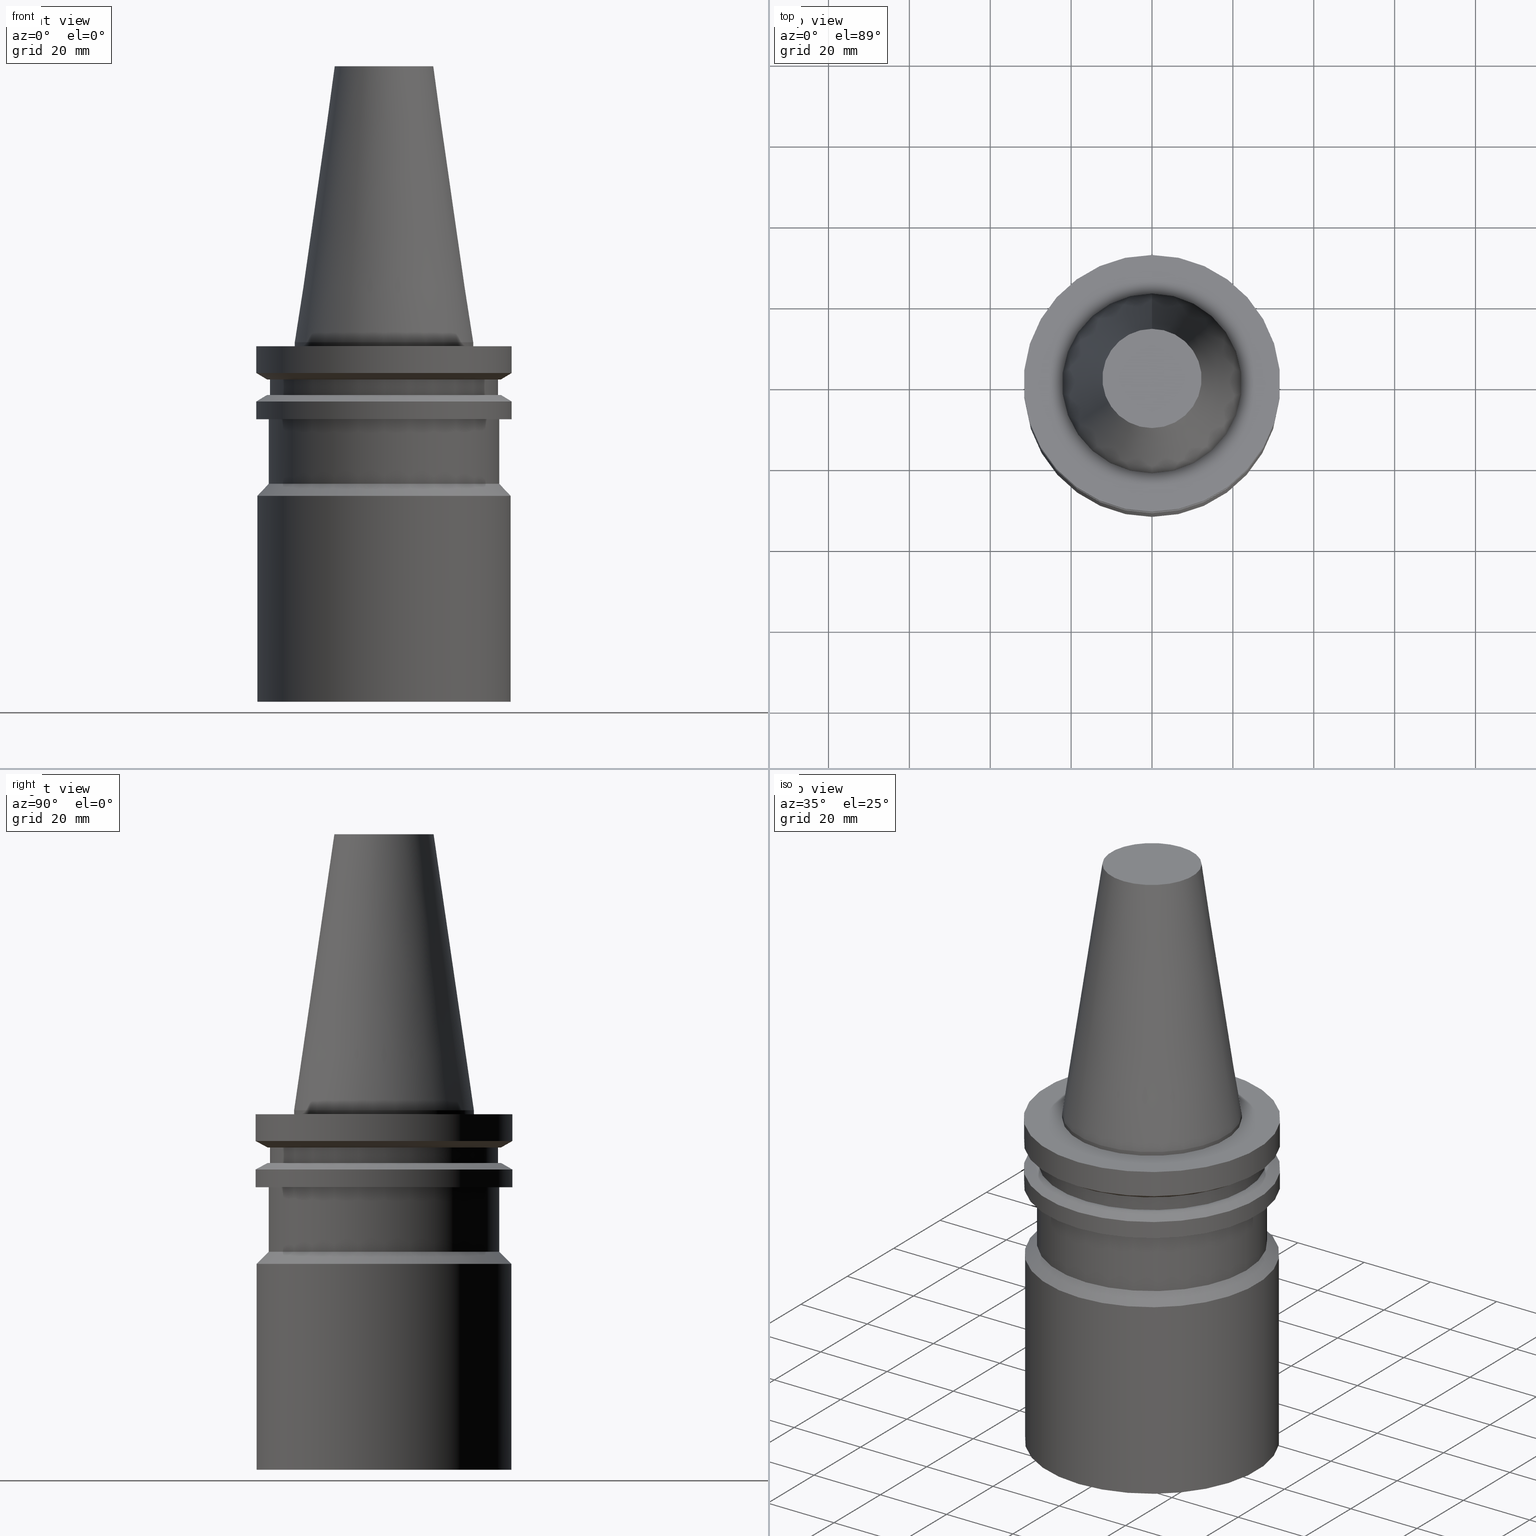
[diagram: canonical four-view strip — front | top / right | iso, engineering-drawing reading convention]
A machine part, canonical four-view strip (front | top / right | iso — engineering-drawing reading convention). The complete STEP part file that produces these views, byte-faithful:
ISO-10303-21;
HEADER;
FILE_DESCRIPTION((''),'1');
FILE_NAME('V:/90_\X2\53D65F9730C730FC30BF\X0\/00_\X2\6DE18DEF30C730FC30BF\X0\/ALL/BCV-BKUS\X2\FF76FF80FF9BFF78FF9E752852A05DE556F3\X0\201801/BCV40Y-CAPTO/BCV40Y-C6-3.5.stp','2018-02-01T01:51:46',(''),(''),'Spatial Interop R21 SP3','Kubotek KeyCreator 2011 V10.0.2 (22737)',' ');
FILE_SCHEMA(('automotive_design'));
ENDSEC;
DATA;
#1=MECHANICAL_DESIGN_GEOMETRIC_PRESENTATION_REPRESENTATION(' ',(#10,#11,#12,#13,#14,#15,#16,#17,#18,#19,#20,#21,#22,#23,#24,#25,#26,#27,#28,#29,#30,#31,#32,#33,#34,#35,#36,#37,#38,#39,#40,#41),#6);
#2=PRODUCT_DEFINITION_CONTEXT('',#42,'design');
#3=APPLICATION_PROTOCOL_DEFINITION('INTERNATIONAL STANDARD','automotive_design',1994,#42);
#4=PRODUCT_CATEGORY_RELATIONSHIP('NONE','NONE',#43,#44);
#5=SHAPE_DEFINITION_REPRESENTATION(#45,#46);
#6= (GEOMETRIC_REPRESENTATION_CONTEXT(3)GLOBAL_UNCERTAINTY_ASSIGNED_CONTEXT((#49))GLOBAL_UNIT_ASSIGNED_CONTEXT((#51,#52,#53))REPRESENTATION_CONTEXT('NONE','WORKSPACE'));
#10=STYLED_ITEM('',(#55),#56);
#11=STYLED_ITEM('',(#57),#58);
#12=STYLED_ITEM('',(#59,#60),#61);
#13=STYLED_ITEM('',(#62,#63),#64);
#14=STYLED_ITEM('',(#65),#66);
#15=STYLED_ITEM('',(#67),#68);
#16=STYLED_ITEM('',(#69),#70);
#17=STYLED_ITEM('',(#71,#72),#73);
#18=STYLED_ITEM('',(#74,#75),#76);
#19=STYLED_ITEM('',(#77),#78);
#20=STYLED_ITEM('',(#79,#80),#81);
#21=STYLED_ITEM('',(#82,#83),#84);
#22=STYLED_ITEM('',(#85),#86);
#23=STYLED_ITEM('',(#87,#88),#89);
#24=STYLED_ITEM('',(#90,#91),#92);
#25=STYLED_ITEM('',(#93,#94),#95);
#26=STYLED_ITEM('',(#96,#97),#98);
#27=STYLED_ITEM('',(#99,#100),#101);
#28=STYLED_ITEM('',(#102,#103),#104);
#29=STYLED_ITEM('',(#105,#106),#107);
#30=STYLED_ITEM('',(#108),#109);
#31=STYLED_ITEM('',(#110),#111);
#32=STYLED_ITEM('',(#112,#113),#114);
#33=STYLED_ITEM('',(#115),#116);
#34=STYLED_ITEM('',(#117),#118);
#35=STYLED_ITEM('',(#119),#120);
#36=STYLED_ITEM('',(#121),#122);
#37=STYLED_ITEM('',(#123,#124),#125);
#38=STYLED_ITEM('',(#126,#127),#128);
#39=STYLED_ITEM('',(#129,#130),#131);
#40=STYLED_ITEM('',(#132),#133);
#41=STYLED_ITEM('',(#134),#135);
#42=APPLICATION_CONTEXT(' ');
#43=PRODUCT_CATEGORY('part','NONE');
#44=PRODUCT_RELATED_PRODUCT_CATEGORY('detail',' ',(#136));
#45=PRODUCT_DEFINITION_SHAPE('NONE','NONE',#137);
#46=ADVANCED_BREP_SHAPE_REPRESENTATION('Unnamed[1]',(#92,#138),#6);
#49=UNCERTAINTY_MEASURE_WITH_UNIT(LENGTH_MEASURE(1.0E-006),#51,'','');
#51= (CONVERSION_BASED_UNIT('MILLIMETRE',#141)LENGTH_UNIT()NAMED_UNIT(#144));
#52= (NAMED_UNIT(#146)PLANE_ANGLE_UNIT()SI_UNIT($,.RADIAN.));
#53= (NAMED_UNIT(#146)SOLID_ANGLE_UNIT()SI_UNIT($,.STERADIAN.));
#55=PRESENTATION_STYLE_ASSIGNMENT((#152));
#56=EDGE_CURVE('Unnamed[1]',#153,#153,#154,.T.);
#57=PRESENTATION_STYLE_ASSIGNMENT((#155));
#58=EDGE_CURVE('Unnamed[1]',#156,#156,#157,.T.);
#59=PRESENTATION_STYLE_ASSIGNMENT((#158));
#60=PRESENTATION_STYLE_ASSIGNMENT((#159));
#61=ADVANCED_FACE('Unnamed[1]',(#160,#161),#162,.T.);
#62=PRESENTATION_STYLE_ASSIGNMENT((#163));
#63=PRESENTATION_STYLE_ASSIGNMENT((#164));
#64=ADVANCED_FACE('Unnamed[1]',(#165,#166),#167,.T.);
#65=PRESENTATION_STYLE_ASSIGNMENT((#168));
#66=EDGE_CURVE('Unnamed[1]',#169,#169,#170,.T.);
#67=PRESENTATION_STYLE_ASSIGNMENT((#171));
#68=EDGE_CURVE('Unnamed[1]',#172,#172,#173,.T.);
#69=PRESENTATION_STYLE_ASSIGNMENT((#174));
#70=EDGE_CURVE('Unnamed[1]',#175,#175,#176,.T.);
#71=PRESENTATION_STYLE_ASSIGNMENT((#177));
#72=PRESENTATION_STYLE_ASSIGNMENT((#178));
#73=ADVANCED_FACE('Unnamed[1]',(#179,#180),#181,.T.);
#74=PRESENTATION_STYLE_ASSIGNMENT((#182));
#75=PRESENTATION_STYLE_ASSIGNMENT((#183));
#76=ADVANCED_FACE('Unnamed[1]',(#184,#185),#186,.T.);
#77=PRESENTATION_STYLE_ASSIGNMENT((#187));
#78=EDGE_CURVE('Unnamed[1]',#188,#188,#189,.T.);
#79=PRESENTATION_STYLE_ASSIGNMENT((#190));
#80=PRESENTATION_STYLE_ASSIGNMENT((#191));
#81=ADVANCED_FACE('Unnamed[1]',(#192,#193),#194,.T.);
#82=PRESENTATION_STYLE_ASSIGNMENT((#195));
#83=PRESENTATION_STYLE_ASSIGNMENT((#196));
#84=ADVANCED_FACE('Unnamed[1]',(#197,#198),#199,.T.);
#85=PRESENTATION_STYLE_ASSIGNMENT((#200));
#86=EDGE_CURVE('Unnamed[1]',#201,#201,#202,.T.);
#87=PRESENTATION_STYLE_ASSIGNMENT((#203));
#88=PRESENTATION_STYLE_ASSIGNMENT((#204));
#89=ADVANCED_FACE('Unnamed[1]',(#205,#206),#207,.T.);
#90=PRESENTATION_STYLE_ASSIGNMENT((#208));
#91=PRESENTATION_STYLE_ASSIGNMENT((#209));
#92=MANIFOLD_SOLID_BREP('Unnamed[1]',#210);
#93=PRESENTATION_STYLE_ASSIGNMENT((#211));
#94=PRESENTATION_STYLE_ASSIGNMENT((#212));
#95=ADVANCED_FACE('Unnamed[1]',(#213),#214,.T.);
#96=PRESENTATION_STYLE_ASSIGNMENT((#215));
#97=PRESENTATION_STYLE_ASSIGNMENT((#216));
#98=ADVANCED_FACE('Unnamed[1]',(#217,#218),#219,.T.);
#99=PRESENTATION_STYLE_ASSIGNMENT((#220));
#100=PRESENTATION_STYLE_ASSIGNMENT((#221));
#101=ADVANCED_FACE('Unnamed[1]',(#222,#223),#224,.T.);
#102=PRESENTATION_STYLE_ASSIGNMENT((#225));
#103=PRESENTATION_STYLE_ASSIGNMENT((#226));
#104=ADVANCED_FACE('Unnamed[1]',(#227),#228,.T.);
#105=PRESENTATION_STYLE_ASSIGNMENT((#229));
#106=PRESENTATION_STYLE_ASSIGNMENT((#230));
#107=ADVANCED_FACE('Unnamed[1]',(#231,#232),#233,.T.);
#108=PRESENTATION_STYLE_ASSIGNMENT((#234));
#109=EDGE_CURVE('Unnamed[1]',#235,#235,#236,.T.);
#110=PRESENTATION_STYLE_ASSIGNMENT((#237));
#111=EDGE_CURVE('Unnamed[1]',#238,#238,#239,.T.);
#112=PRESENTATION_STYLE_ASSIGNMENT((#240));
#113=PRESENTATION_STYLE_ASSIGNMENT((#241));
#114=ADVANCED_FACE('Unnamed[1]',(#242,#243),#244,.T.);
#115=PRESENTATION_STYLE_ASSIGNMENT((#245));
#116=EDGE_CURVE('Unnamed[1]',#246,#246,#247,.T.);
#117=PRESENTATION_STYLE_ASSIGNMENT((#248));
#118=EDGE_CURVE('Unnamed[1]',#249,#249,#250,.T.);
#119=PRESENTATION_STYLE_ASSIGNMENT((#251));
#120=EDGE_CURVE('Unnamed[1]',#252,#252,#253,.T.);
#121=PRESENTATION_STYLE_ASSIGNMENT((#254));
#122=EDGE_CURVE('Unnamed[1]',#255,#255,#256,.T.);
#123=PRESENTATION_STYLE_ASSIGNMENT((#257));
#124=PRESENTATION_STYLE_ASSIGNMENT((#258));
#125=ADVANCED_FACE('Unnamed[1]',(#259,#260),#261,.T.);
#126=PRESENTATION_STYLE_ASSIGNMENT((#262));
#127=PRESENTATION_STYLE_ASSIGNMENT((#263));
#128=ADVANCED_FACE('Unnamed[1]',(#264,#265),#266,.T.);
#129=PRESENTATION_STYLE_ASSIGNMENT((#267));
#130=PRESENTATION_STYLE_ASSIGNMENT((#268));
#131=ADVANCED_FACE('Unnamed[1]',(#269,#270),#271,.T.);
#132=PRESENTATION_STYLE_ASSIGNMENT((#272));
#133=EDGE_CURVE('Unnamed[1]',#273,#273,#274,.T.);
#134=PRESENTATION_STYLE_ASSIGNMENT((#275));
#135=EDGE_CURVE('Unnamed[1]',#276,#276,#277,.T.);
#136=PRODUCT('Unnamed[1]','Unnamed[1]','PART-Unnamed[1]-DESC',(#278));
#137=PRODUCT_DEFINITION('NONE','NONE',#279,#2);
#138=AXIS2_PLACEMENT_3D('',#280,#281,#282);
#141=LENGTH_MEASURE_WITH_UNIT(LENGTH_MEASURE(1.0),#283);
#144=DIMENSIONAL_EXPONENTS(1.0,0.0,0.0,0.0,0.0,0.0,0.0);
#146=DIMENSIONAL_EXPONENTS(0.0,0.0,0.0,0.0,0.0,0.0,0.0);
#152=CURVE_STYLE('',#284,POSITIVE_LENGTH_MEASURE(1000.0),#285);
#153=VERTEX_POINT('',#286);
#154=CIRCLE('',#287,31.75);
#155=CURVE_STYLE('',#288,POSITIVE_LENGTH_MEASURE(1000.0),#289);
#156=VERTEX_POINT('',#290);
#157=CIRCLE('',#291,22.225);
#158=SURFACE_STYLE_USAGE(.BOTH.,#292);
#159=CURVE_STYLE('',#293,POSITIVE_LENGTH_MEASURE(1000.0),#294);
#160=FACE_BOUND('',#295,.T.);
#161=FACE_BOUND('',#296,.T.);
#162=CYLINDRICAL_SURFACE('',#297,28.5000000000001);
#163=SURFACE_STYLE_USAGE(.BOTH.,#298);
#164=CURVE_STYLE('',#299,POSITIVE_LENGTH_MEASURE(1000.0),#300);
#165=FACE_BOUND('',#301,.T.);
#166=FACE_BOUND('',#302,.T.);
#167=CYLINDRICAL_SURFACE('',#303,31.5);
#168=CURVE_STYLE('',#304,POSITIVE_LENGTH_MEASURE(1000.0),#305);
#169=VERTEX_POINT('',#306);
#170=CIRCLE('',#307,31.75);
#171=CURVE_STYLE('',#308,POSITIVE_LENGTH_MEASURE(1000.0),#309);
#172=VERTEX_POINT('',#310);
#173=CIRCLE('',#311,28.5000000000001);
#174=CURVE_STYLE('',#312,POSITIVE_LENGTH_MEASURE(1000.0),#313);
#175=VERTEX_POINT('',#314);
#176=CIRCLE('',#315,31.5);
#177=SURFACE_STYLE_USAGE(.BOTH.,#316);
#178=CURVE_STYLE('',#317,POSITIVE_LENGTH_MEASURE(1000.0),#318);
#179=FACE_BOUND('',#319,.T.);
#180=FACE_OUTER_BOUND('',#320,.T.);
#181=PLANE('',#321);
#182=SURFACE_STYLE_USAGE(.BOTH.,#322);
#183=CURVE_STYLE('',#323,POSITIVE_LENGTH_MEASURE(1000.0),#324);
#184=FACE_BOUND('',#325,.T.);
#185=FACE_BOUND('',#326,.T.);
#186=CYLINDRICAL_SURFACE('',#327,28.18);
#187=CURVE_STYLE('',#328,POSITIVE_LENGTH_MEASURE(1000.0),#329);
#188=VERTEX_POINT('',#330);
#189=CIRCLE('',#331,31.75);
#190=SURFACE_STYLE_USAGE(.BOTH.,#332);
#191=CURVE_STYLE('',#333,POSITIVE_LENGTH_MEASURE(1000.0),#334);
#192=FACE_BOUND('',#335,.T.);
#193=FACE_BOUND('',#336,.T.);
#194=CONICAL_SURFACE('',#337,30.358779226926,1.0471975511966);
#195=SURFACE_STYLE_USAGE(.BOTH.,#338);
#196=CURVE_STYLE('',#339,POSITIVE_LENGTH_MEASURE(1000.0),#340);
#197=FACE_BOUND('',#341,.T.);
#198=FACE_BOUND('',#342,.T.);
#199=CYLINDRICAL_SURFACE('',#343,31.75);
#200=CURVE_STYLE('',#344,POSITIVE_LENGTH_MEASURE(1000.0),#345);
#201=VERTEX_POINT('',#346);
#202=CIRCLE('',#347,31.5);
#203=SURFACE_STYLE_USAGE(.BOTH.,#348);
#204=CURVE_STYLE('',#349,POSITIVE_LENGTH_MEASURE(1000.0),#350);
#205=FACE_BOUND('',#351,.T.);
#206=FACE_BOUND('',#352,.T.);
#207=CYLINDRICAL_SURFACE('',#353,22.225);
#208=SURFACE_STYLE_USAGE(.BOTH.,#354);
#209=CURVE_STYLE('',#355,POSITIVE_LENGTH_MEASURE(1000.0),#356);
#210=CLOSED_SHELL('',(#104,#114,#89,#98,#125,#131,#101,#76,#107,#81,#84,#73,#61,#128,#64,#95));
#211=SURFACE_STYLE_USAGE(.BOTH.,#357);
#212=CURVE_STYLE('',#358,POSITIVE_LENGTH_MEASURE(1000.0),#359);
#213=FACE_OUTER_BOUND('',#360,.T.);
#214=PLANE('',#361);
#215=SURFACE_STYLE_USAGE(.BOTH.,#362);
#216=CURVE_STYLE('',#363,POSITIVE_LENGTH_MEASURE(1000.0),#364);
#217=FACE_OUTER_BOUND('',#365,.T.);
#218=FACE_BOUND('',#366,.T.);
#219=PLANE('',#367);
#220=SURFACE_STYLE_USAGE(.BOTH.,#368);
#221=CURVE_STYLE('',#369,POSITIVE_LENGTH_MEASURE(1000.0),#370);
#222=FACE_BOUND('',#371,.T.);
#223=FACE_OUTER_BOUND('',#372,.T.);
#224=PLANE('',#373);
#225=SURFACE_STYLE_USAGE(.BOTH.,#374);
#226=CURVE_STYLE('',#375,POSITIVE_LENGTH_MEASURE(1000.0),#376);
#227=FACE_OUTER_BOUND('',#377,.T.);
#228=PLANE('',#378);
#229=SURFACE_STYLE_USAGE(.BOTH.,#379);
#230=CURVE_STYLE('',#380,POSITIVE_LENGTH_MEASURE(1000.0),#381);
#231=FACE_OUTER_BOUND('',#382,.T.);
#232=FACE_BOUND('',#383,.T.);
#233=PLANE('',#384);
#234=CURVE_STYLE('',#385,POSITIVE_LENGTH_MEASURE(1000.0),#386);
#235=VERTEX_POINT('',#387);
#236=CIRCLE('',#388,12.271875);
#237=CURVE_STYLE('',#389,POSITIVE_LENGTH_MEASURE(1000.0),#390);
#238=VERTEX_POINT('',#391);
#239=CIRCLE('',#392,28.9675584538521);
#240=SURFACE_STYLE_USAGE(.BOTH.,#393);
#241=CURVE_STYLE('',#394,POSITIVE_LENGTH_MEASURE(1000.0),#395);
#242=FACE_BOUND('',#396,.T.);
#243=FACE_BOUND('',#397,.T.);
#244=CONICAL_SURFACE('',#398,17.2484375,0.144812498238939);
#245=CURVE_STYLE('',#399,POSITIVE_LENGTH_MEASURE(1000.0),#400);
#246=VERTEX_POINT('',#401);
#247=CIRCLE('',#402,28.18);
#248=CURVE_STYLE('',#403,POSITIVE_LENGTH_MEASURE(1000.0),#404);
#249=VERTEX_POINT('',#405);
#250=CIRCLE('',#406,22.225);
#251=CURVE_STYLE('',#407,POSITIVE_LENGTH_MEASURE(1000.0),#408);
#252=VERTEX_POINT('',#409);
#253=CIRCLE('',#410,28.5000000000001);
#254=CURVE_STYLE('',#411,POSITIVE_LENGTH_MEASURE(1000.0),#412);
#255=VERTEX_POINT('',#413);
#256=CIRCLE('',#414,28.967558453852);
#257=SURFACE_STYLE_USAGE(.BOTH.,#415);
#258=CURVE_STYLE('',#416,POSITIVE_LENGTH_MEASURE(1000.0),#417);
#259=FACE_BOUND('',#418,.T.);
#260=FACE_BOUND('',#419,.T.);
#261=CYLINDRICAL_SURFACE('',#420,31.75);
#262=SURFACE_STYLE_USAGE(.BOTH.,#421);
#263=CURVE_STYLE('',#422,POSITIVE_LENGTH_MEASURE(1000.0),#423);
#264=FACE_BOUND('',#424,.T.);
#265=FACE_BOUND('',#425,.T.);
#266=CONICAL_SURFACE('',#426,30.0000000000001,0.785398163397448);
#267=SURFACE_STYLE_USAGE(.BOTH.,#427);
#268=CURVE_STYLE('',#428,POSITIVE_LENGTH_MEASURE(1000.0),#429);
#269=FACE_BOUND('',#430,.T.);
#270=FACE_BOUND('',#431,.T.);
#271=CONICAL_SURFACE('',#432,30.358779226926,1.04719755119658);
#272=CURVE_STYLE('',#433,POSITIVE_LENGTH_MEASURE(1000.0),#434);
#273=VERTEX_POINT('',#435);
#274=CIRCLE('',#436,31.75);
#275=CURVE_STYLE('',#437,POSITIVE_LENGTH_MEASURE(1000.0),#438);
#276=VERTEX_POINT('',#439);
#277=CIRCLE('',#440,28.18);
#278=PRODUCT_CONTEXT('',#42,'mechanical');
#279=PRODUCT_DEFINITION_FORMATION_WITH_SPECIFIED_SOURCE(' ','NONE',#136,.NOT_KNOWN.);
#280=CARTESIAN_POINT('',(0.0,0.0,0.0));
#281=DIRECTION('',(0.0,0.0,1.0));
#282=DIRECTION('',(1.0,0.0,0.0));
#283= (NAMED_UNIT(#144)LENGTH_UNIT()SI_UNIT(.MILLI.,.METRE.));
#284=DRAUGHTING_PRE_DEFINED_CURVE_FONT('continuous');
#285=COLOUR_RGB('',0.0,1.0,0.0);
#286=CARTESIAN_POINT('',(6.12323399572837E-017,31.7499999999999,-0.999999999998632));
#287=AXIS2_PLACEMENT_3D('',#442,#443,#444);
#288=DRAUGHTING_PRE_DEFINED_CURVE_FONT('continuous');
#289=COLOUR_RGB('',0.0,1.0,0.0);
#290=CARTESIAN_POINT('',(-7.23525537133772E-030,22.225,1.16408615232721E-013));
#291=AXIS2_PLACEMENT_3D('',#445,#446,#447);
#292=SURFACE_SIDE_STYLE('',(#448));
#293=DRAUGHTING_PRE_DEFINED_CURVE_FONT('continuous');
#294=COLOUR_RGB('',0.0,1.0,0.0);
#295=EDGE_LOOP('',(#449));
#296=EDGE_LOOP('',(#450));
#297=AXIS2_PLACEMENT_3D('',#451,#452,#453);
#298=SURFACE_SIDE_STYLE('',(#454));
#299=DRAUGHTING_PRE_DEFINED_CURVE_FONT('continuous');
#300=COLOUR_RGB('',0.0,1.0,0.0);
#301=EDGE_LOOP('',(#455));
#302=EDGE_LOOP('',(#456));
#303=AXIS2_PLACEMENT_3D('',#457,#458,#459);
#304=DRAUGHTING_PRE_DEFINED_CURVE_FONT('continuous');
#305=COLOUR_RGB('',0.0,1.0,0.0);
#306=CARTESIAN_POINT('',(4.64971240706304E-016,31.7499999999999,-7.59355662432687));
#307=AXIS2_PLACEMENT_3D('',#460,#461,#462);
#308=DRAUGHTING_PRE_DEFINED_CURVE_FONT('continuous');
#309=COLOUR_RGB('',0.0,1.0,0.0);
#310=CARTESIAN_POINT('',(2.14313189850787E-015,28.5000000000001,-35.0000000000001));
#311=AXIS2_PLACEMENT_3D('',#463,#464,#465);
#312=DRAUGHTING_PRE_DEFINED_CURVE_FONT('continuous');
#313=COLOUR_RGB('',0.0,1.0,0.0);
#314=CARTESIAN_POINT('',(5.44355502220998E-015,31.5,-88.8999999999999));
#315=AXIS2_PLACEMENT_3D('',#466,#467,#468);
#316=SURFACE_SIDE_STYLE('',(#469));
#317=DRAUGHTING_PRE_DEFINED_CURVE_FONT('continuous');
#318=COLOUR_RGB('',0.0,1.0,0.0);
#319=EDGE_LOOP('',(#470));
#320=EDGE_LOOP('',(#471));
#321=AXIS2_PLACEMENT_3D('',#472,#473,#474);
#322=SURFACE_SIDE_STYLE('',(#475));
#323=DRAUGHTING_PRE_DEFINED_CURVE_FONT('continuous');
#324=COLOUR_RGB('',0.0,1.0,0.0);
#325=EDGE_LOOP('',(#476));
#326=EDGE_LOOP('',(#477));
#327=AXIS2_PLACEMENT_3D('',#478,#479,#480);
#328=DRAUGHTING_PRE_DEFINED_CURVE_FONT('continuous');
#329=COLOUR_RGB('',0.0,1.0,0.0);
#330=CARTESIAN_POINT('',(8.96835999945531E-016,31.7499999999999,-14.6464433756728));
#331=AXIS2_PLACEMENT_3D('',#481,#482,#483);
#332=SURFACE_SIDE_STYLE('',(#484));
#333=DRAUGHTING_PRE_DEFINED_CURVE_FONT('continuous');
#334=COLOUR_RGB('',0.0,1.0,0.0);
#335=EDGE_LOOP('',(#485));
#336=EDGE_LOOP('',(#486));
#337=AXIS2_PLACEMENT_3D('',#487,#488,#489);
#338=SURFACE_SIDE_STYLE('',(#490));
#339=DRAUGHTING_PRE_DEFINED_CURVE_FONT('continuous');
#340=COLOUR_RGB('',0.0,1.0,0.0);
#341=EDGE_LOOP('',(#491));
#342=EDGE_LOOP('',(#492));
#343=AXIS2_PLACEMENT_3D('',#493,#494,#495);
#344=DRAUGHTING_PRE_DEFINED_CURVE_FONT('continuous');
#345=COLOUR_RGB('',0.0,1.0,0.0);
#346=CARTESIAN_POINT('',(2.32682891837997E-015,31.5,-38.0));
#347=AXIS2_PLACEMENT_3D('',#496,#497,#498);
#348=SURFACE_SIDE_STYLE('',(#499));
#349=DRAUGHTING_PRE_DEFINED_CURVE_FONT('continuous');
#350=COLOUR_RGB('',0.0,1.0,0.0);
#351=EDGE_LOOP('',(#500));
#352=EDGE_LOOP('',(#501));
#353=AXIS2_PLACEMENT_3D('',#502,#503,#504);
#354=SURFACE_SIDE_STYLE('',(#505));
#355=DRAUGHTING_PRE_DEFINED_CURVE_FONT('continuous');
#356=COLOUR_RGB('',0.0,1.0,0.0);
#357=SURFACE_SIDE_STYLE('',(#506));
#358=DRAUGHTING_PRE_DEFINED_CURVE_FONT('continuous');
#359=COLOUR_RGB('',0.0,1.0,0.0);
#360=EDGE_LOOP('',(#507));
#361=AXIS2_PLACEMENT_3D('',#508,#509,#510);
#362=SURFACE_SIDE_STYLE('',(#511));
#363=DRAUGHTING_PRE_DEFINED_CURVE_FONT('continuous');
#364=COLOUR_RGB('',0.0,1.0,0.0);
#365=EDGE_LOOP('',(#512));
#366=EDGE_LOOP('',(#513));
#367=AXIS2_PLACEMENT_3D('',#514,#515,#516);
#368=SURFACE_SIDE_STYLE('',(#517));
#369=DRAUGHTING_PRE_DEFINED_CURVE_FONT('continuous');
#370=COLOUR_RGB('',0.0,1.0,0.0);
#371=EDGE_LOOP('',(#518));
#372=EDGE_LOOP('',(#519));
#373=AXIS2_PLACEMENT_3D('',#520,#521,#522);
#374=SURFACE_SIDE_STYLE('',(#523));
#375=DRAUGHTING_PRE_DEFINED_CURVE_FONT('continuous');
#376=COLOUR_RGB('',0.0,1.0,0.0);
#377=EDGE_LOOP('',(#524));
#378=AXIS2_PLACEMENT_3D('',#525,#526,#527);
#379=SURFACE_SIDE_STYLE('',(#528));
#380=DRAUGHTING_PRE_DEFINED_CURVE_FONT('continuous');
#381=COLOUR_RGB('',0.0,1.0,0.0);
#382=EDGE_LOOP('',(#529));
#383=EDGE_LOOP('',(#530));
#384=AXIS2_PLACEMENT_3D('',#531,#532,#533);
#385=DRAUGHTING_PRE_DEFINED_CURVE_FONT('continuous');
#386=COLOUR_RGB('',0.0,1.0,0.0);
#387=CARTESIAN_POINT('',(-4.17910720209035E-015,12.271875,68.2500000000002));
#388=AXIS2_PLACEMENT_3D('',#534,#535,#536);
#389=DRAUGHTING_PRE_DEFINED_CURVE_FONT('continuous');
#390=COLOUR_RGB('',0.0,1.0,0.0);
#391=CARTESIAN_POINT('',(5.63337527607771E-016,28.9675584538521,-9.19999999999981));
#392=AXIS2_PLACEMENT_3D('',#537,#538,#539);
#393=SURFACE_SIDE_STYLE('',(#540));
#394=DRAUGHTING_PRE_DEFINED_CURVE_FONT('continuous');
#395=COLOUR_RGB('',0.0,1.0,0.0);
#396=EDGE_LOOP('',(#541));
#397=EDGE_LOOP('',(#542));
#398=AXIS2_PLACEMENT_3D('',#543,#544,#545);
#399=DRAUGHTING_PRE_DEFINED_CURVE_FONT('continuous');
#400=COLOUR_RGB('',0.0,1.0,0.0);
#401=CARTESIAN_POINT('',(5.63337527607771E-016,28.18,-9.19999999999981));
#402=AXIS2_PLACEMENT_3D('',#546,#547,#548);
#403=DRAUGHTING_PRE_DEFINED_CURVE_FONT('continuous');
#404=COLOUR_RGB('',0.0,1.0,0.0);
#405=CARTESIAN_POINT('',(6.12323399572838E-017,22.225,-0.999999999998633));
#406=AXIS2_PLACEMENT_3D('',#549,#550,#551);
#407=DRAUGHTING_PRE_DEFINED_CURVE_FONT('continuous');
#408=COLOUR_RGB('',0.0,1.0,0.0);
#409=CARTESIAN_POINT('',(1.16647607618784E-015,28.5000000000001,-19.0499999999998));
#410=AXIS2_PLACEMENT_3D('',#552,#553,#554);
#411=DRAUGHTING_PRE_DEFINED_CURVE_FONT('continuous');
#412=COLOUR_RGB('',0.0,1.0,0.0);
#413=CARTESIAN_POINT('',(7.98469713044065E-016,28.967558453852,-13.0399999999998));
#414=AXIS2_PLACEMENT_3D('',#555,#556,#557);
#415=SURFACE_SIDE_STYLE('',(#558));
#416=DRAUGHTING_PRE_DEFINED_CURVE_FONT('continuous');
#417=COLOUR_RGB('',0.0,1.0,0.0);
#418=EDGE_LOOP('',(#559));
#419=EDGE_LOOP('',(#560));
#420=AXIS2_PLACEMENT_3D('',#561,#562,#563);
#421=SURFACE_SIDE_STYLE('',(#564));
#422=DRAUGHTING_PRE_DEFINED_CURVE_FONT('continuous');
#423=COLOUR_RGB('',0.0,1.0,0.0);
#424=EDGE_LOOP('',(#565));
#425=EDGE_LOOP('',(#566));
#426=AXIS2_PLACEMENT_3D('',#567,#568,#569);
#427=SURFACE_SIDE_STYLE('',(#570));
#428=DRAUGHTING_PRE_DEFINED_CURVE_FONT('continuous');
#429=COLOUR_RGB('',0.0,1.0,0.0);
#430=EDGE_LOOP('',(#571));
#431=EDGE_LOOP('',(#572));
#432=AXIS2_PLACEMENT_3D('',#573,#574,#575);
#433=DRAUGHTING_PRE_DEFINED_CURVE_FONT('continuous');
#434=COLOUR_RGB('',0.0,1.0,0.0);
#435=CARTESIAN_POINT('',(1.16647607618784E-015,31.7499999999999,-19.0499999999998));
#436=AXIS2_PLACEMENT_3D('',#576,#577,#578);
#437=DRAUGHTING_PRE_DEFINED_CURVE_FONT('continuous');
#438=COLOUR_RGB('',0.0,1.0,0.0);
#439=CARTESIAN_POINT('',(7.98469713044065E-016,28.18,-13.0399999999998));
#440=AXIS2_PLACEMENT_3D('',#579,#580,#581);
#442=CARTESIAN_POINT('',(6.1232339957285E-017,-3.2335566977408E-014,-0.99999999999865));
#443=DIRECTION('',(6.12323399573677E-017,4.5708356297992E-016,-1.0));
#444=DIRECTION('',(-3.28154488480826E-032,1.0,4.5708356297992E-016));
#445=CARTESIAN_POINT('',(-6.09114720904207E-030,-3.27926505403873E-014,9.9475983006414E-014));
#446=DIRECTION('',(6.12323399573677E-017,4.57083562979934E-016,-1.0));
#447=DIRECTION('',(-3.28154488480789E-032,1.0,4.57083562979934E-016));
#448=SURFACE_STYLE_FILL_AREA(#582);
#449=ORIENTED_EDGE('',*,*,#68,.F.);
#450=ORIENTED_EDGE('',*,*,#120,.T.);
#451=CARTESIAN_POINT('',(1.65480398734786E-015,-2.04399672508552E-014,-27.025));
#452=DIRECTION('',(6.12323399573677E-017,4.57083562979924E-016,-1.0));
#453=DIRECTION('',(-3.28154488480819E-032,1.0,4.57083562979924E-016));
#454=SURFACE_STYLE_FILL_AREA(#583);
#455=ORIENTED_EDGE('',*,*,#70,.F.);
#456=ORIENTED_EDGE('',*,*,#86,.T.);
#457=CARTESIAN_POINT('',(3.88519197029498E-015,-3.7906984693119E-015,-63.45));
#458=DIRECTION('',(6.12323399573677E-017,4.57083562979919E-016,-1.0));
#459=DIRECTION('',(-3.28154488480798E-032,1.0,4.57083562979919E-016));
#460=CARTESIAN_POINT('',(4.64971240706306E-016,-2.93217606228502E-014,-7.59355662432689));
#461=DIRECTION('',(6.12323399573677E-017,4.5708356297992E-016,-1.0));
#462=DIRECTION('',(-3.28154488480826E-032,1.0,4.5708356297992E-016));
#463=CARTESIAN_POINT('',(2.14313189850787E-015,-1.67947258360904E-014,-35.0000000000001));
#464=DIRECTION('',(6.12323399573677E-017,4.57083562979924E-016,-1.0));
#465=DIRECTION('',(-3.28154488480819E-032,1.0,4.57083562979924E-016));
#466=CARTESIAN_POINT('',(5.44355502220998E-015,7.84207820852682E-015,-88.8999999999999));
#467=DIRECTION('',(6.12323399573677E-017,4.57083562979919E-016,-1.0));
#468=DIRECTION('',(-3.28154488480798E-032,1.0,4.57083562979919E-016));
#469=SURFACE_STYLE_FILL_AREA(#584);
#470=ORIENTED_EDGE('',*,*,#120,.F.);
#471=ORIENTED_EDGE('',*,*,#133,.T.);
#472=CARTESIAN_POINT('',(1.16647607618784E-015,30.125,-19.0499999999998));
#473=DIRECTION('',(6.12323399573677E-017,1.22464679914735E-016,-1.0));
#474=DIRECTION('',(-1.23259516440783E-032,1.0,1.22464679914735E-016));
#475=SURFACE_STYLE_FILL_AREA(#585);
#476=ORIENTED_EDGE('',*,*,#135,.F.);
#477=ORIENTED_EDGE('',*,*,#116,.T.);
#478=CARTESIAN_POINT('',(6.80903620325919E-016,-2.77098813200507E-014,-11.1199999999998));
#479=DIRECTION('',(6.12323399573677E-017,4.57083562979922E-016,-1.0));
#480=DIRECTION('',(-3.28154488480815E-032,1.0,4.57083562979922E-016));
#481=CARTESIAN_POINT('',(8.96835999945533E-016,-2.60980020172512E-014,-14.6464433756728));
#482=DIRECTION('',(6.12323399573677E-017,4.5708356297992E-016,-1.0));
#483=DIRECTION('',(-3.28154488480826E-032,1.0,4.5708356297992E-016));
#484=SURFACE_STYLE_FILL_AREA(#586);
#485=ORIENTED_EDGE('',*,*,#78,.F.);
#486=ORIENTED_EDGE('',*,*,#122,.T.);
#487=CARTESIAN_POINT('',(8.47652856494799E-016,-2.64651414481903E-014,-13.8432216878363));
#488=DIRECTION('',(6.12323399573677E-017,4.57083562979896E-016,-1.0));
#489=DIRECTION('',(-3.28154488480789E-032,1.0,4.57083562979896E-016));
#490=SURFACE_STYLE_FILL_AREA(#587);
#491=ORIENTED_EDGE('',*,*,#133,.F.);
#492=ORIENTED_EDGE('',*,*,#78,.T.);
#493=CARTESIAN_POINT('',(1.03165603806669E-015,-2.50916053414356E-014,-16.8482216878363));
#494=DIRECTION('',(6.12323399573677E-017,4.5708356297992E-016,-1.0));
#495=DIRECTION('',(-3.28154488480826E-032,1.0,4.5708356297992E-016));
#496=CARTESIAN_POINT('',(2.32682891837997E-015,-1.54234751471506E-014,-38.0));
#497=DIRECTION('',(6.12323399573677E-017,4.57083562979919E-016,-1.0));
#498=DIRECTION('',(-3.28154488480827E-032,1.0,4.57083562979919E-016));
#499=SURFACE_STYLE_FILL_AREA(#588);
#500=ORIENTED_EDGE('',*,*,#118,.F.);
#501=ORIENTED_EDGE('',*,*,#58,.T.);
#502=CARTESIAN_POINT('',(3.06161699786395E-017,-3.25641087588977E-014,-0.499999999999275));
#503=DIRECTION('',(6.12323399573677E-017,4.57083562979934E-016,-1.0));
#504=DIRECTION('',(-3.28154488480789E-032,1.0,4.57083562979934E-016));
#505=SURFACE_STYLE_FILL_AREA(#589);
#506=SURFACE_STYLE_FILL_AREA(#590);
#507=ORIENTED_EDGE('',*,*,#70,.T.);
#508=CARTESIAN_POINT('',(5.44355502220998E-015,15.75,-88.8999999999999));
#509=DIRECTION('',(6.12323399573677E-017,2.82929414947702E-015,-1.0));
#510=DIRECTION('',(-1.78071453930937E-031,1.0,2.82929414947702E-015));
#511=SURFACE_STYLE_FILL_AREA(#591);
#512=ORIENTED_EDGE('',*,*,#56,.F.);
#513=ORIENTED_EDGE('',*,*,#118,.T.);
#514=CARTESIAN_POINT('',(6.12323399572838E-017,26.9875,-0.999999999998632));
#515=DIRECTION('',(-6.12323399573677E-017,-1.22464679914735E-016,1.0));
#516=DIRECTION('',(1.23259516440783E-032,-1.0,-1.22464679914735E-016));
#517=SURFACE_STYLE_FILL_AREA(#592);
#518=ORIENTED_EDGE('',*,*,#116,.F.);
#519=ORIENTED_EDGE('',*,*,#111,.T.);
#520=CARTESIAN_POINT('',(5.63337527607771E-016,28.573779226926,-9.19999999999981));
#521=DIRECTION('',(6.12323399573677E-017,1.22464679914735E-016,-1.0));
#522=DIRECTION('',(-1.23259516440783E-032,1.0,1.22464679914735E-016));
#523=SURFACE_STYLE_FILL_AREA(#593);
#524=ORIENTED_EDGE('',*,*,#109,.F.);
#525=CARTESIAN_POINT('',(-4.17910720209035E-015,6.13593749999994,68.2500000000002));
#526=DIRECTION('',(-6.12323399573677E-017,-1.22464679914735E-016,1.0));
#527=DIRECTION('',(1.23259516440783E-032,-1.0,-1.22464679914735E-016));
#528=SURFACE_STYLE_FILL_AREA(#594);
#529=ORIENTED_EDGE('',*,*,#122,.F.);
#530=ORIENTED_EDGE('',*,*,#135,.T.);
#531=CARTESIAN_POINT('',(7.98469713044065E-016,28.573779226926,-13.0399999999998));
#532=DIRECTION('',(-6.12323399573677E-017,-1.22464679914735E-016,1.0));
#533=DIRECTION('',(1.23259516440783E-032,-1.0,-1.22464679914735E-016));
#534=CARTESIAN_POINT('',(-4.17910720209035E-015,-6.39886037137663E-014,68.2500000000002));
#535=DIRECTION('',(6.12323399573677E-017,4.57083562979896E-016,-1.0));
#536=DIRECTION('',(-3.28154488480783E-032,1.0,4.57083562979896E-016));
#537=CARTESIAN_POINT('',(5.63337527607772E-016,-2.85874817609722E-014,-9.19999999999983));
#538=DIRECTION('',(6.12323399573677E-017,4.57083562979924E-016,-1.0));
#539=DIRECTION('',(-3.28154488480778E-032,1.0,4.57083562979924E-016));
#540=SURFACE_STYLE_FILL_AREA(#595);
#541=ORIENTED_EDGE('',*,*,#58,.F.);
#542=ORIENTED_EDGE('',*,*,#109,.T.);
#543=CARTESIAN_POINT('',(-2.08955360104518E-015,-4.83906271270768E-014,34.1250000000001));
#544=DIRECTION('',(6.12323399573677E-017,4.57083562979897E-016,-1.0));
#545=DIRECTION('',(-3.28154488480761E-032,1.0,4.57083562979897E-016));
#546=CARTESIAN_POINT('',(5.63337527607772E-016,-2.85874817609722E-014,-9.19999999999983));
#547=DIRECTION('',(6.12323399573677E-017,4.57083562979922E-016,-1.0));
#548=DIRECTION('',(-3.28154488480815E-032,1.0,4.57083562979922E-016));
#549=CARTESIAN_POINT('',(6.1232339957285E-017,-3.2335566977408E-014,-0.99999999999865));
#550=DIRECTION('',(6.12323399573677E-017,4.57083562979934E-016,-1.0));
#551=DIRECTION('',(-3.28154488480789E-032,1.0,4.57083562979934E-016));
#552=CARTESIAN_POINT('',(1.16647607618785E-015,-2.408520866562E-014,-19.0499999999999));
#553=DIRECTION('',(6.12323399573677E-017,4.57083562979924E-016,-1.0));
#554=DIRECTION('',(-3.28154488480819E-032,1.0,4.57083562979924E-016));
#555=CARTESIAN_POINT('',(7.98469713044066E-016,-2.68322808791293E-014,-13.0399999999999));
#556=DIRECTION('',(6.12323399573677E-017,4.57083562979926E-016,-1.0));
#557=DIRECTION('',(-3.2815448848081E-032,1.0,4.57083562979926E-016));
#558=SURFACE_STYLE_FILL_AREA(#596);
#559=ORIENTED_EDGE('',*,*,#66,.F.);
#560=ORIENTED_EDGE('',*,*,#56,.T.);
#561=CARTESIAN_POINT('',(2.63101790331795E-016,-3.08286638001291E-014,-4.29677831216277));
#562=DIRECTION('',(6.12323399573677E-017,4.5708356297992E-016,-1.0));
#563=DIRECTION('',(-3.28154488480826E-032,1.0,4.5708356297992E-016));
#564=SURFACE_STYLE_FILL_AREA(#597);
#565=ORIENTED_EDGE('',*,*,#86,.F.);
#566=ORIENTED_EDGE('',*,*,#68,.T.);
#567=CARTESIAN_POINT('',(2.23498040844392E-015,-1.61091004916205E-014,-36.5));
#568=DIRECTION('',(6.12323399573677E-017,4.57083562979921E-016,-1.0));
#569=DIRECTION('',(-3.28154488480808E-032,1.0,4.57083562979921E-016));
#570=SURFACE_STYLE_FILL_AREA(#598);
#571=ORIENTED_EDGE('',*,*,#111,.F.);
#572=ORIENTED_EDGE('',*,*,#66,.T.);
#573=CARTESIAN_POINT('',(5.14154384157039E-016,-2.89546211919112E-014,-8.39677831216336));
#574=DIRECTION('',(-6.12323399573677E-017,-4.57083562979895E-016,1.0));
#575=DIRECTION('',(-3.28154488480788E-032,1.0,4.57083562979895E-016));
#576=CARTESIAN_POINT('',(1.16647607618785E-015,-2.408520866562E-014,-19.0499999999999));
#577=DIRECTION('',(6.12323399573677E-017,4.5708356297992E-016,-1.0));
#578=DIRECTION('',(-3.28154488480826E-032,1.0,4.5708356297992E-016));
#579=CARTESIAN_POINT('',(7.98469713044066E-016,-2.68322808791293E-014,-13.0399999999999));
#580=DIRECTION('',(6.12323399573677E-017,4.57083562979922E-016,-1.0));
#581=DIRECTION('',(-3.28154488480815E-032,1.0,4.57083562979922E-016));
#582=FILL_AREA_STYLE('',(#599));
#583=FILL_AREA_STYLE('',(#600));
#584=FILL_AREA_STYLE('',(#601));
#585=FILL_AREA_STYLE('',(#602));
#586=FILL_AREA_STYLE('',(#603));
#587=FILL_AREA_STYLE('',(#604));
#588=FILL_AREA_STYLE('',(#605));
#589=FILL_AREA_STYLE('',(#606));
#590=FILL_AREA_STYLE('',(#607));
#591=FILL_AREA_STYLE('',(#608));
#592=FILL_AREA_STYLE('',(#609));
#593=FILL_AREA_STYLE('',(#610));
#594=FILL_AREA_STYLE('',(#611));
#595=FILL_AREA_STYLE('',(#612));
#596=FILL_AREA_STYLE('',(#613));
#597=FILL_AREA_STYLE('',(#614));
#598=FILL_AREA_STYLE('',(#615));
#599=FILL_AREA_STYLE_COLOUR('',#616);
#600=FILL_AREA_STYLE_COLOUR('',#617);
#601=FILL_AREA_STYLE_COLOUR('',#618);
#602=FILL_AREA_STYLE_COLOUR('',#619);
#603=FILL_AREA_STYLE_COLOUR('',#620);
#604=FILL_AREA_STYLE_COLOUR('',#621);
#605=FILL_AREA_STYLE_COLOUR('',#622);
#606=FILL_AREA_STYLE_COLOUR('',#623);
#607=FILL_AREA_STYLE_COLOUR('',#624);
#608=FILL_AREA_STYLE_COLOUR('',#625);
#609=FILL_AREA_STYLE_COLOUR('',#626);
#610=FILL_AREA_STYLE_COLOUR('',#627);
#611=FILL_AREA_STYLE_COLOUR('',#628);
#612=FILL_AREA_STYLE_COLOUR('',#629);
#613=FILL_AREA_STYLE_COLOUR('',#630);
#614=FILL_AREA_STYLE_COLOUR('',#631);
#615=FILL_AREA_STYLE_COLOUR('',#632);
#616=COLOUR_RGB('',0.0,1.0,0.0);
#617=COLOUR_RGB('',0.0,1.0,0.0);
#618=COLOUR_RGB('',0.0,1.0,0.0);
#619=COLOUR_RGB('',0.0,1.0,0.0);
#620=COLOUR_RGB('',0.0,1.0,0.0);
#621=COLOUR_RGB('',0.0,1.0,0.0);
#622=COLOUR_RGB('',0.0,1.0,0.0);
#623=COLOUR_RGB('',0.0,1.0,0.0);
#624=COLOUR_RGB('',0.0,1.0,0.0);
#625=COLOUR_RGB('',0.0,1.0,0.0);
#626=COLOUR_RGB('',0.0,1.0,0.0);
#627=COLOUR_RGB('',0.0,1.0,0.0);
#628=COLOUR_RGB('',0.0,1.0,0.0);
#629=COLOUR_RGB('',0.0,1.0,0.0);
#630=COLOUR_RGB('',0.0,1.0,0.0);
#631=COLOUR_RGB('',0.0,1.0,0.0);
#632=COLOUR_RGB('',0.0,1.0,0.0);
ENDSEC;
END-ISO-10303-21;
